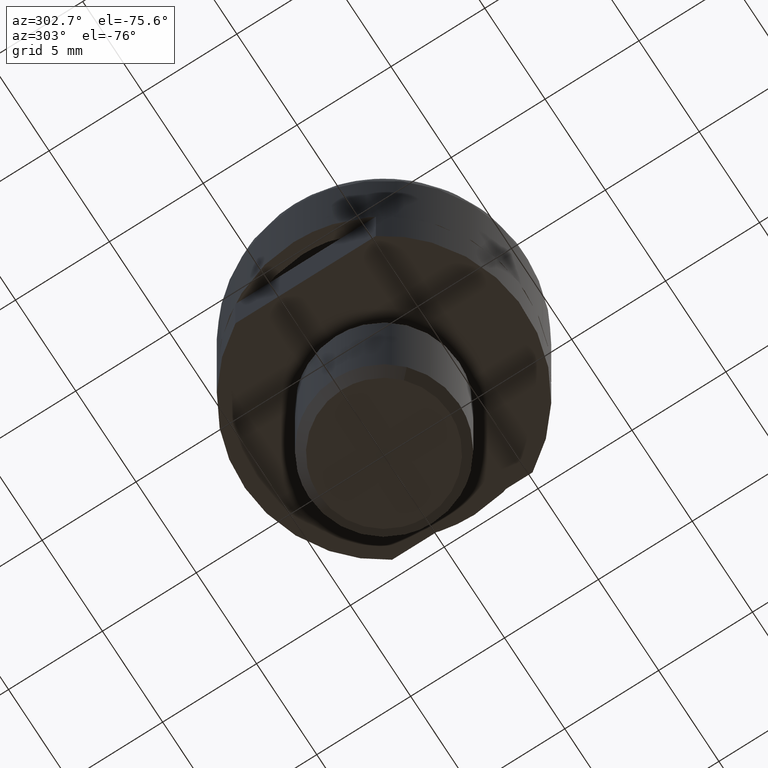
[diagram: clean part render]
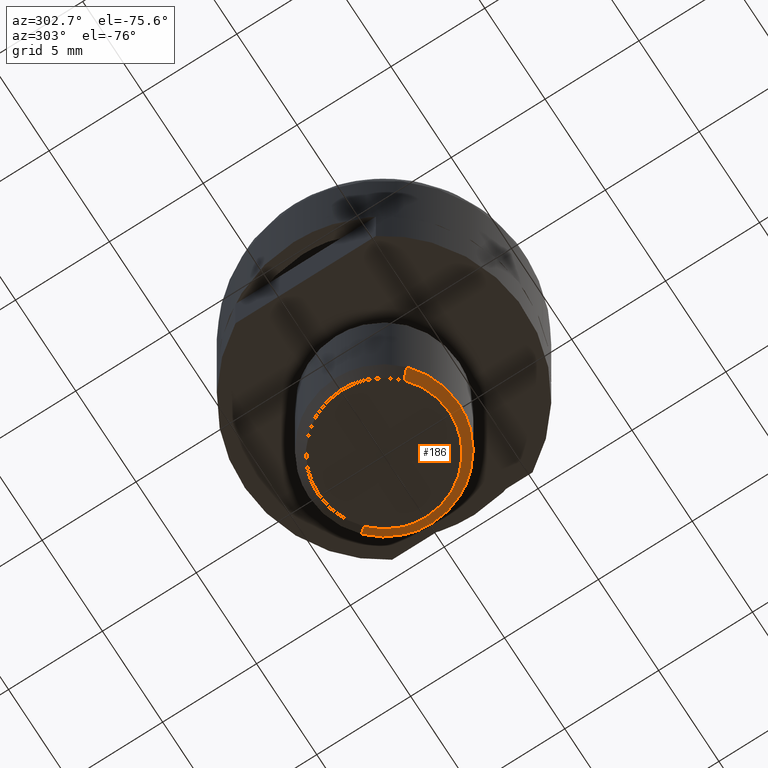
[diagram: same view with one face highlighted and labeled with its STEP entity id]
A machine part, auxiliary view. The second image highlights one B-rep face of the part: STEP entity #186.
In plain terms, the highlighted face is a freeform B-spline surface patch.
Its self-contained STEP definition (entity closure, byte-faithful):
#30=CARTESIAN_POINT('',(2.364565807277105,2.580470766819214,-13.499999960221171));
#31=VERTEX_POINT('',#30);
#42=CARTESIAN_POINT('',(3.500000000000000,0.0,-13.499999999999860));
#43=VERTEX_POINT('',#42);
#44=CARTESIAN_POINT('',(2.364565807277105,2.580470766819214,-13.499999960221171));
#45=CARTESIAN_POINT('',(2.559599479421533,2.401838053387261,-13.499999962974840));
#46=CARTESIAN_POINT('',(2.818991983556353,2.103351149716535,-13.499999967576120));
#47=CARTESIAN_POINT('',(3.110404080390739,1.625130618733885,-13.499999974947960));
#48=CARTESIAN_POINT('',(3.289963388648867,1.224119945007441,-13.499999981129831));
#49=CARTESIAN_POINT('',(3.453515344696070,0.672487541027527,-13.499999989632929));
#50=CARTESIAN_POINT('',(3.500058456224525,0.264476096218998,-13.499999995923080));
#51=CARTESIAN_POINT('',(3.500000000000000,0.0,-13.499999999999860));
#52=B_SPLINE_CURVE_WITH_KNOTS('',3,(#44,#45,#46,#47,#48,#49,#50,#51),.UNSPECIFIED.,.F.,.U.,(4,1,1,1,1,4),(6.243498E-009,0.793410488373201,1.178784023802175,1.677493346765054,2.108204520354894,2.901615002484806),.UNSPECIFIED.);
#53=EDGE_CURVE('',#31,#43,#52,.T.);
#55=CARTESIAN_POINT('',(-0.000000319445054,-3.499999999999985,-13.499999999999860));
#56=VERTEX_POINT('',#55);
#57=CARTESIAN_POINT('',(3.500000000000000,0.0,-13.499999999999860));
#58=CARTESIAN_POINT('',(3.500041398697077,-0.243394346635748,-13.499999999999870));
#59=CARTESIAN_POINT('',(3.465508350781992,-0.572670909563876,-13.499999999999851));
#60=CARTESIAN_POINT('',(3.333228608143188,-1.100780505525078,-13.499999999999890));
#61=CARTESIAN_POINT('',(3.149253633949803,-1.569171903300247,-13.499999999999879));
#62=CARTESIAN_POINT('',(2.847702763849255,-2.058527179454779,-13.499999999999810));
#63=CARTESIAN_POINT('',(2.540592077774893,-2.418979846207523,-13.499999999999920));
#64=CARTESIAN_POINT('',(2.215025509084534,-2.721414572319359,-13.499999999999851));
#65=CARTESIAN_POINT('',(1.784552576713849,-3.032606948590959,-13.499999999999771));
#66=CARTESIAN_POINT('',(1.226624059856003,-3.300695097777690,-13.499999999999920));
#67=CARTESIAN_POINT('',(0.601311815504838,-3.465466899123772,-13.499999999999851));
#68=CARTESIAN_POINT('',(0.200438944323582,-3.500017530409854,-13.499999999999821));
#69=CARTESIAN_POINT('',(-0.000000319445054,-3.499999999999985,-13.499999999999860));
#70=B_SPLINE_CURVE_WITH_KNOTS('',3,(#57,#58,#59,#60,#61,#62,#63,#64,#65,#66,#67,#68,#69),.UNSPECIFIED.,.F.,.U.,(4,1,1,1,1,1,1,1,1,1,4),(7.833227E-009,0.730175269487474,0.987886500432972,1.632168203959947,2.233490702194300,2.705959997065984,3.049572663094681,3.564991118752883,4.295175067649332,4.896503920260544,5.497821820108571),.UNSPECIFIED.);
#71=EDGE_CURVE('',#43,#56,#70,.T.);
#73=CARTESIAN_POINT('',(-2.364565807277082,-2.580470766819190,-13.499999960221180));
#74=VERTEX_POINT('',#73);
#75=CARTESIAN_POINT('',(-0.000000319445054,-3.499999999999985,-13.499999999999860));
#76=CARTESIAN_POINT('',(-0.229871806291727,-3.500028389433069,-13.499999996132811));
#77=CARTESIAN_POINT('',(-0.649036266290668,-3.458554151975730,-13.499999989081180));
#78=CARTESIAN_POINT('',(-1.262148147573470,-3.283478909877712,-13.499999978766960));
#79=CARTESIAN_POINT('',(-1.836305494785479,-3.004700414499578,-13.499999969108130));
#80=CARTESIAN_POINT('',(-2.195105684609287,-2.735790742005124,-13.499999963071881));
#81=CARTESIAN_POINT('',(-2.364565807277082,-2.580470766819190,-13.499999960221180));
#82=B_SPLINE_CURVE_WITH_KNOTS('',3,(#75,#76,#77,#78,#79,#80,#81),.UNSPECIFIED.,.F.,.U.,(4,1,1,1,4),(2.783732E-009,0.689613440860384,1.257531549891855,1.906578079343110,2.596191517421183),.UNSPECIFIED.);
#83=EDGE_CURVE('',#56,#74,#82,.T.);
#99=CARTESIAN_POINT('',(-2.356120849059613,-2.571254712125305,-13.512499999999861));
#100=CARTESIAN_POINT('',(0.215133863065692,-4.927375561184919,-13.512499999999863));
#101=CARTESIAN_POINT('',(2.571254712125305,-2.356120849059613,-13.512499999999861));
#102=CARTESIAN_POINT('',(4.927375561184919,0.215133863065692,-13.512499999999863));
#103=CARTESIAN_POINT('',(2.356120849059613,2.571254712125305,-13.512499999999861));
#104=CARTESIAN_POINT('',(-2.711016829997715,-2.958555713118375,-12.987187499999861));
#105=CARTESIAN_POINT('',(0.247538883120659,-5.669572543116090,-12.987187499999861));
#106=CARTESIAN_POINT('',(2.958555713118375,-2.711016829997715,-12.987187499999861));
#107=CARTESIAN_POINT('',(5.669572543116090,0.247538883120659,-12.987187499999861));
#108=CARTESIAN_POINT('',(2.711016829997715,2.958555713118375,-12.987187499999861));
#116=(BOUNDED_SURFACE()B_SPLINE_SURFACE(2,1,((#99,#104),(#100,#105),(#101,#106),(#102,#107),(#103,#108)),.UNSPECIFIED.,.F.,.F.,.U.)B_SPLINE_SURFACE_WITH_KNOTS((3,2,3),(2,2),(0.0,6.648645443041140,13.297290886082280),(0.0,1.0),.UNSPECIFIED.)GEOMETRIC_REPRESENTATION_ITEM()RATIONAL_B_SPLINE_SURFACE(((1.0,1.0),(0.707106781186548,0.707106781186548),(1.0,1.0),(0.707106781186548,0.707106781186548),(1.0,1.0)))REPRESENTATION_ITEM('')SURFACE());
#117=CARTESIAN_POINT('',(-0.000000298883704,-3.999999999999989,-12.999999999999860));
#118=VERTEX_POINT('',#117);
#119=CARTESIAN_POINT('',(-2.702360905895554,-2.949109429561139,-12.999999962781571));
#120=VERTEX_POINT('',#119);
#121=CARTESIAN_POINT('',(-0.000000298883704,-3.999999999999989,-12.999999999999860));
#122=CARTESIAN_POINT('',(-0.200894573748085,-4.000006833849754,-12.999999997233051));
#123=CARTESIAN_POINT('',(-0.649046586238803,-3.966185248707660,-12.999999991060831));
#124=CARTESIAN_POINT('',(-1.236482173122356,-3.820322455916217,-12.999999982970451));
#125=CARTESIAN_POINT('',(-1.751024869562213,-3.606341257156054,-12.999999975883810));
#126=CARTESIAN_POINT('',(-2.223870513071125,-3.341878254780292,-12.999999969371610));
#127=CARTESIAN_POINT('',(-2.531473140724917,-3.105730196923548,-12.999999965135141));
#128=CARTESIAN_POINT('',(-2.702360905895554,-2.949109429561139,-12.999999962781571));
#129=B_SPLINE_CURVE_WITH_KNOTS('',3,(#121,#122,#123,#124,#125,#126,#127,#128),.UNSPECIFIED.,.F.,.U.,(4,1,1,1,1,4),(1.254592E-009,0.602687290401584,1.344456601079225,1.808061741040179,2.271667626158336,2.967076076935655),.UNSPECIFIED.);
#130=EDGE_CURVE('',#118,#120,#129,.T.);
#131=ORIENTED_EDGE('',*,*,#130,.T.);
#132=CARTESIAN_POINT('',(-2.364565807277082,-2.580470766819190,-13.499999960221180));
#133=CARTESIAN_POINT('',(-2.702360905895554,-2.949109429561139,-12.999999962781571));
#134=QUASI_UNIFORM_CURVE('',1,(#132,#133),.UNSPECIFIED.,.F.,.U.);
#135=EDGE_CURVE('',#74,#120,#134,.T.);
#136=ORIENTED_EDGE('',*,*,#135,.F.);
#137=ORIENTED_EDGE('',*,*,#83,.F.);
#138=ORIENTED_EDGE('',*,*,#71,.F.);
#139=ORIENTED_EDGE('',*,*,#53,.F.);
#140=CARTESIAN_POINT('',(2.702360905895586,2.949109429561174,-12.999999962781549));
#141=VERTEX_POINT('',#140);
#142=CARTESIAN_POINT('',(2.364565807277105,2.580470766819214,-13.499999960221171));
#143=CARTESIAN_POINT('',(2.702360905895586,2.949109429561174,-12.999999962781549));
#144=QUASI_UNIFORM_CURVE('',1,(#142,#143),.UNSPECIFIED.,.F.,.U.);
#145=EDGE_CURVE('',#31,#141,#144,.T.);
#146=ORIENTED_EDGE('',*,*,#145,.T.);
#147=CARTESIAN_POINT('',(4.0,0.0,-12.999999999999860));
#148=VERTEX_POINT('',#147);
#149=CARTESIAN_POINT('',(2.702360905895586,2.949109429561174,-12.999999962781549));
#150=CARTESIAN_POINT('',(2.887023993022948,2.779937766610589,-12.999999964916530));
#151=CARTESIAN_POINT('',(3.172035105336778,2.464644462735711,-12.999999968895580));
#152=CARTESIAN_POINT('',(3.464462412668522,2.014798165396831,-12.999999974572731));
#153=CARTESIAN_POINT('',(3.718721530333733,1.513799014013364,-12.999999980895460));
#154=CARTESIAN_POINT('',(3.936967702406595,0.863557567052297,-12.999999989101489));
#155=CARTESIAN_POINT('',(4.000049423881165,0.293619034072345,-12.999999996294390));
#156=CARTESIAN_POINT('',(4.0,0.0,-12.999999999999860));
#157=B_SPLINE_CURVE_WITH_KNOTS('',3,(#149,#150,#151,#152,#153,#154,#155,#156),.UNSPECIFIED.,.F.,.U.,(4,1,1,1,1,4),(5.929453E-009,0.751310531476355,1.269460208842413,1.606254067652039,2.435283786637226,3.316131421160547),.UNSPECIFIED.);
#158=EDGE_CURVE('',#141,#148,#157,.T.);
#159=ORIENTED_EDGE('',*,*,#158,.T.);
#160=CARTESIAN_POINT('',(2.901497424377466,-2.753418257254559,-12.999999999999860));
#161=VERTEX_POINT('',#160);
#162=CARTESIAN_POINT('',(4.0,0.0,-12.999999999999860));
#163=CARTESIAN_POINT('',(4.000021593978187,-0.229348625047346,-12.999999999999860));
#164=CARTESIAN_POINT('',(3.965891133637014,-0.624767858892875,-12.999999999999879));
#165=CARTESIAN_POINT('',(3.833445170229573,-1.179699498566134,-12.999999999999860));
#166=CARTESIAN_POINT('',(3.637077466204650,-1.698561861951282,-12.999999999999879));
#167=CARTESIAN_POINT('',(3.336519293514331,-2.239516411124261,-12.999999999999879));
#168=CARTESIAN_POINT('',(3.059384414003708,-2.587068221887849,-12.999999999999851));
#169=CARTESIAN_POINT('',(2.901497424377466,-2.753418257254559,-12.999999999999860));
#170=B_SPLINE_CURVE_WITH_KNOTS('',3,(#162,#163,#164,#165,#166,#167,#168,#169),.UNSPECIFIED.,.F.,.U.,(4,1,1,1,1,4),(4.603046E-009,0.688042406418738,1.186282735303504,1.708241255789303,2.348834928055208,3.036877329870923),.UNSPECIFIED.);
#171=EDGE_CURVE('',#148,#161,#170,.T.);
#172=ORIENTED_EDGE('',*,*,#171,.T.);
#173=CARTESIAN_POINT('',(2.901497424377466,-2.753418257254559,-12.999999999999860));
#174=CARTESIAN_POINT('',(2.773477886483729,-2.888333012001719,-12.999999999999879));
#175=CARTESIAN_POINT('',(2.479831393739985,-3.157440073080092,-12.999999999999851));
#176=CARTESIAN_POINT('',(2.036728131357019,-3.455946469962688,-12.999999999999851));
#177=CARTESIAN_POINT('',(1.551974554676987,-3.697825985528306,-12.999999999999909));
#178=CARTESIAN_POINT('',(0.904519197414400,-3.926344374498269,-12.999999999999741));
#179=CARTESIAN_POINT('',(0.355078283886067,-4.000109134603403,-13.000000000000011));
#180=CARTESIAN_POINT('',(-0.000000298883704,-3.999999999999989,-12.999999999999860));
#181=B_SPLINE_CURVE_WITH_KNOTS('',3,(#173,#174,#175,#176,#177,#178,#179,#180),.UNSPECIFIED.,.F.,.U.,(4,1,1,1,1,4),(5.673825E-009,0.557960549206940,1.192010189093752,1.597803688364067,2.181119599837400,3.246318106935164),.UNSPECIFIED.);
#182=EDGE_CURVE('',#161,#118,#181,.T.);
#183=ORIENTED_EDGE('',*,*,#182,.T.);
#184=EDGE_LOOP('',(#131,#136,#137,#138,#139,#146,#159,#172,#183));
#185=FACE_OUTER_BOUND('',#184,.T.);
#186=ADVANCED_FACE('',(#185),#116,.T.);